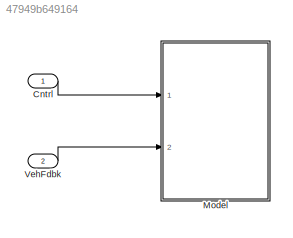
MODEL slx_47949b649164
KIND model
CONFIG AbsTol = auto
CONFIG EnableMultiTasking = off
CONFIG FixedStep = auto
CONFIG MaxStep = auto
CONFIG MinStep = auto
CONFIG RelTol = 1e-3
CONFIG SampleTimeConstraint = Unconstrained
CONFIG Solver = VariableStepAuto
CONFIG SolverName = VariableStepAuto
CONFIG StartTime = 0.0
CONFIG StopTime = 10.0
BLOCK [Inport] Cntrl
BLOCK [ModelReference] Model
  ModelNameDialog = Visualization.slx
  ModelReferenceVersion = 1.3
  Ports = [2]
BLOCK [Inport] VehFdbk
  Port = 2
LINE Cntrl:1 -> Model:1
LINE VehFdbk:1 -> Model:2
